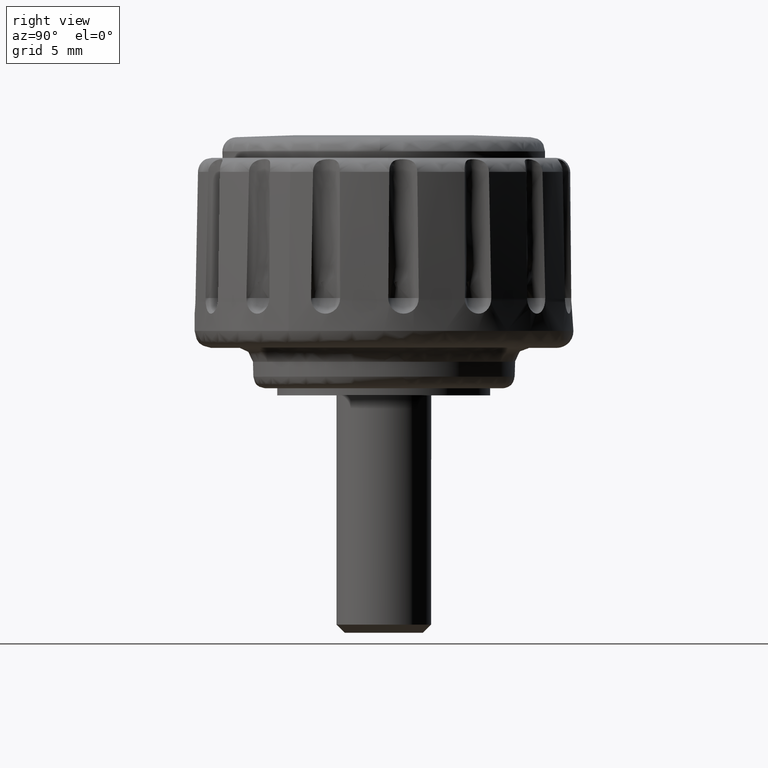
[diagram: clean part render]
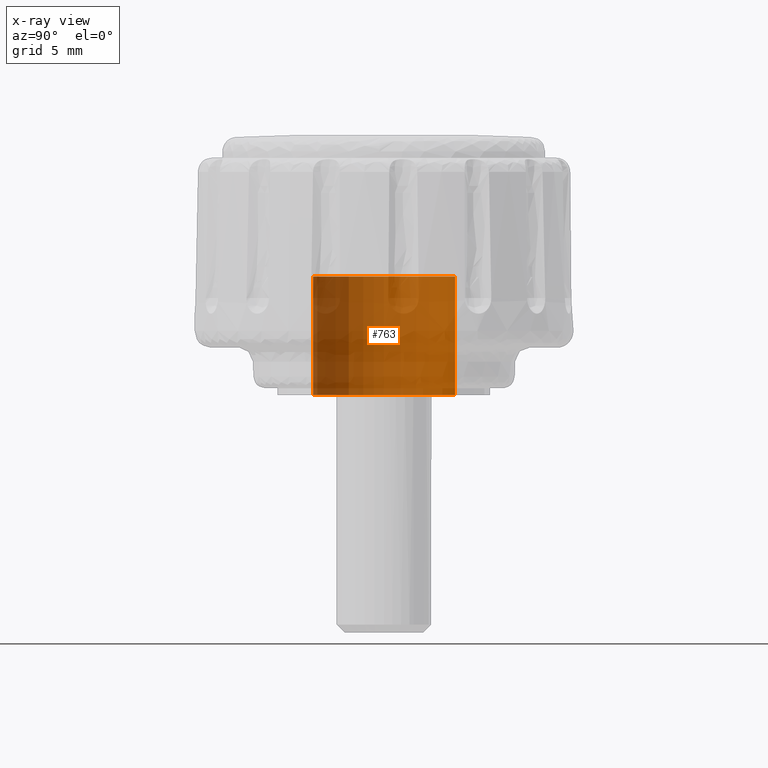
[diagram: x-ray — body ghosted, one internal face saturated and labeled with its STEP entity id]
A machine part, right view, then the same camera in x-ray: the body is ghosted and one INTERNAL B-rep face — a face not visible from any outside direction — is saturated and labeled: STEP entity #763.
In plain terms, the highlighted face is a freeform B-spline surface patch.
Its self-contained STEP definition (entity closure, byte-faithful):
#661=CARTESIAN_POINT('',(0.354102703970275,-2.979028579091000,5.125000000000002));
#662=CARTESIAN_POINT('',(0.268844185913933,-2.989162846345817,5.125000000000001));
#663=CARTESIAN_POINT('',(0.183145618604571,-2.994404395265600,5.125000000000001));
#664=CARTESIAN_POINT('',(-2.811258776661029,-3.177550013870171,5.125000000000001));
#665=CARTESIAN_POINT('',(-2.994404395265600,-0.183145618604571,5.125000000000001));
#666=CARTESIAN_POINT('',(-3.177550013870171,2.811258776661029,5.125000000000001));
#667=CARTESIAN_POINT('',(-0.183145618604571,2.994404395265600,5.125000000000001));
#668=CARTESIAN_POINT('',(0.354102703970275,-2.979028579091000,-0.128125000000001));
#669=CARTESIAN_POINT('',(0.268844185913933,-2.989162846345817,-0.128125000000001));
#670=CARTESIAN_POINT('',(0.183145618604571,-2.994404395265600,-0.128125000000001));
#671=CARTESIAN_POINT('',(-2.811258776661029,-3.177550013870171,-0.128125000000001));
#672=CARTESIAN_POINT('',(-2.994404395265600,-0.183145618604571,-0.128125000000001));
#673=CARTESIAN_POINT('',(-3.177550013870171,2.811258776661029,-0.128125000000001));
#674=CARTESIAN_POINT('',(-0.183145618604571,2.994404395265600,-0.128125000000001));
#682=(BOUNDED_SURFACE()B_SPLINE_SURFACE(2,1,((#661,#668),(#662,#669),(#663,#670),(#664,#671),(#665,#672),(#666,#673),(#667,#674)),.UNSPECIFIED.,.F.,.F.,.U.)B_SPLINE_SURFACE_WITH_KNOTS((3,2,2,3),(2,2),(0.0,0.198822509939086,5.169385258416225,10.139948006893370),(0.0,5.253125000000002),.UNSPECIFIED.)GEOMETRIC_REPRESENTATION_ITEM()RATIONAL_B_SPLINE_SURFACE(((0.977505800795127,0.977505800795127),(0.988284271247462,0.988284271247462),(1.0,1.0),(0.707106781186548,0.707106781186548),(1.0,1.0),(0.707106781186548,0.707106781186548),(1.0,1.0)))REPRESENTATION_ITEM('')SURFACE());
#683=CARTESIAN_POINT('',(0.354098052686718,-2.979029131959191,4.999999999999970));
#684=VERTEX_POINT('',#683);
#685=CARTESIAN_POINT('',(-3.0,0.0,5.0));
#686=VERTEX_POINT('',#685);
#687=CARTESIAN_POINT('',(0.354098052686718,-2.979029131959191,4.999999999999970));
#688=CARTESIAN_POINT('',(0.177670008728108,-3.000000000000000,5.0));
#689=CARTESIAN_POINT('',(0.0,-3.0,5.0));
#690=CARTESIAN_POINT('',(-3.0,-3.0,5.000000000000001));
#691=CARTESIAN_POINT('',(-3.0,0.0,5.0));
#699=(BOUNDED_CURVE()B_SPLINE_CURVE(2,(#687,#688,#689,#690,#691),.UNSPECIFIED.,.F.,.U.)B_SPLINE_CURVE_WITH_KNOTS((3,2,3),(0.229562737387603,0.250000000000000,0.500000000000000),.UNSPECIFIED.)CURVE()GEOMETRIC_REPRESENTATION_ITEM()RATIONAL_B_SPLINE_CURVE((0.956027271388376,0.976056257478877,1.0,0.707106781186548,1.0))REPRESENTATION_ITEM(''));
#700=EDGE_CURVE('',#684,#686,#699,.T.);
#701=ORIENTED_EDGE('',*,*,#700,.F.);
#702=CARTESIAN_POINT('',(0.354098108677182,-2.979029125304052,3.052385E-016));
#703=VERTEX_POINT('',#702);
#704=CARTESIAN_POINT('',(0.354098052686718,-2.979029131959191,4.999999999999970));
#705=CARTESIAN_POINT('',(0.354098108677182,-2.979029125304052,3.052385E-016));
#706=QUASI_UNIFORM_CURVE('',1,(#704,#705),.UNSPECIFIED.,.F.,.U.);
#707=EDGE_CURVE('',#684,#703,#706,.T.);
#708=ORIENTED_EDGE('',*,*,#707,.T.);
#709=CARTESIAN_POINT('',(-3.0,0.0,0.0));
#710=VERTEX_POINT('',#709);
#711=CARTESIAN_POINT('',(0.354098108677182,-2.979029125304053,3.052385E-016));
#712=CARTESIAN_POINT('',(0.177670037019289,-3.000000000000001,0.0));
#713=CARTESIAN_POINT('',(0.0,-3.0,0.0));
#714=CARTESIAN_POINT('',(-3.0,-3.0,0.0));
#715=CARTESIAN_POINT('',(-3.0,0.0,0.0));
#723=(BOUNDED_CURVE()B_SPLINE_CURVE(2,(#711,#712,#713,#714,#715),.UNSPECIFIED.,.F.,.U.)B_SPLINE_CURVE_WITH_KNOTS((3,2,3),(0.229562734211208,0.250000000000000,0.500000000000000),.UNSPECIFIED.)CURVE()GEOMETRIC_REPRESENTATION_ITEM()RATIONAL_B_SPLINE_CURVE((0.956027265162496,0.976056253757498,1.0,0.707106781186548,1.0))REPRESENTATION_ITEM(''));
#724=EDGE_CURVE('',#703,#710,#723,.T.);
#725=ORIENTED_EDGE('',*,*,#724,.T.);
#726=CARTESIAN_POINT('',(-0.183145618619682,2.994404395264676,1.387779E-017));
#727=VERTEX_POINT('',#726);
#728=CARTESIAN_POINT('',(-3.0,0.0,0.0));
#729=CARTESIAN_POINT('',(-3.0,2.822118200688539,0.0));
#730=CARTESIAN_POINT('',(-0.183145618619682,2.994404395264676,1.387779E-017));
#738=(BOUNDED_CURVE()B_SPLINE_CURVE(2,(#728,#729,#730),.UNSPECIFIED.,.F.,.U.)B_SPLINE_CURVE_WITH_KNOTS((3,3),(0.500000000000000,0.739332962240226),.UNSPECIFIED.)CURVE()GEOMETRIC_REPRESENTATION_ITEM()RATIONAL_B_SPLINE_CURVE((1.0,0.719603993285207,0.976072041669468))REPRESENTATION_ITEM(''));
#739=EDGE_CURVE('',#710,#727,#738,.T.);
#740=ORIENTED_EDGE('',*,*,#739,.T.);
#741=CARTESIAN_POINT('',(-0.183145618619683,2.994404395264676,5.0));
#742=VERTEX_POINT('',#741);
#743=CARTESIAN_POINT('',(-0.183145618619683,2.994404395264676,5.0));
#744=CARTESIAN_POINT('',(-0.183145618619682,2.994404395264676,1.387779E-017));
#745=QUASI_UNIFORM_CURVE('',1,(#743,#744),.UNSPECIFIED.,.F.,.U.);
#746=EDGE_CURVE('',#742,#727,#745,.T.);
#747=ORIENTED_EDGE('',*,*,#746,.F.);
#748=CARTESIAN_POINT('',(-3.0,0.0,5.0));
#749=CARTESIAN_POINT('',(-3.0,2.822118200688539,4.999999999999999));
#750=CARTESIAN_POINT('',(-0.183145618619683,2.994404395264676,5.0));
#758=(BOUNDED_CURVE()B_SPLINE_CURVE(2,(#748,#749,#750),.UNSPECIFIED.,.F.,.U.)B_SPLINE_CURVE_WITH_KNOTS((3,3),(0.500000000000000,0.739332962240226),.UNSPECIFIED.)CURVE()GEOMETRIC_REPRESENTATION_ITEM()RATIONAL_B_SPLINE_CURVE((1.0,0.719603993285207,0.976072041669468))REPRESENTATION_ITEM(''));
#759=EDGE_CURVE('',#686,#742,#758,.T.);
#760=ORIENTED_EDGE('',*,*,#759,.F.);
#761=EDGE_LOOP('',(#701,#708,#725,#740,#747,#760));
#762=FACE_OUTER_BOUND('',#761,.T.);
#763=ADVANCED_FACE('',(#762),#682,.F.);